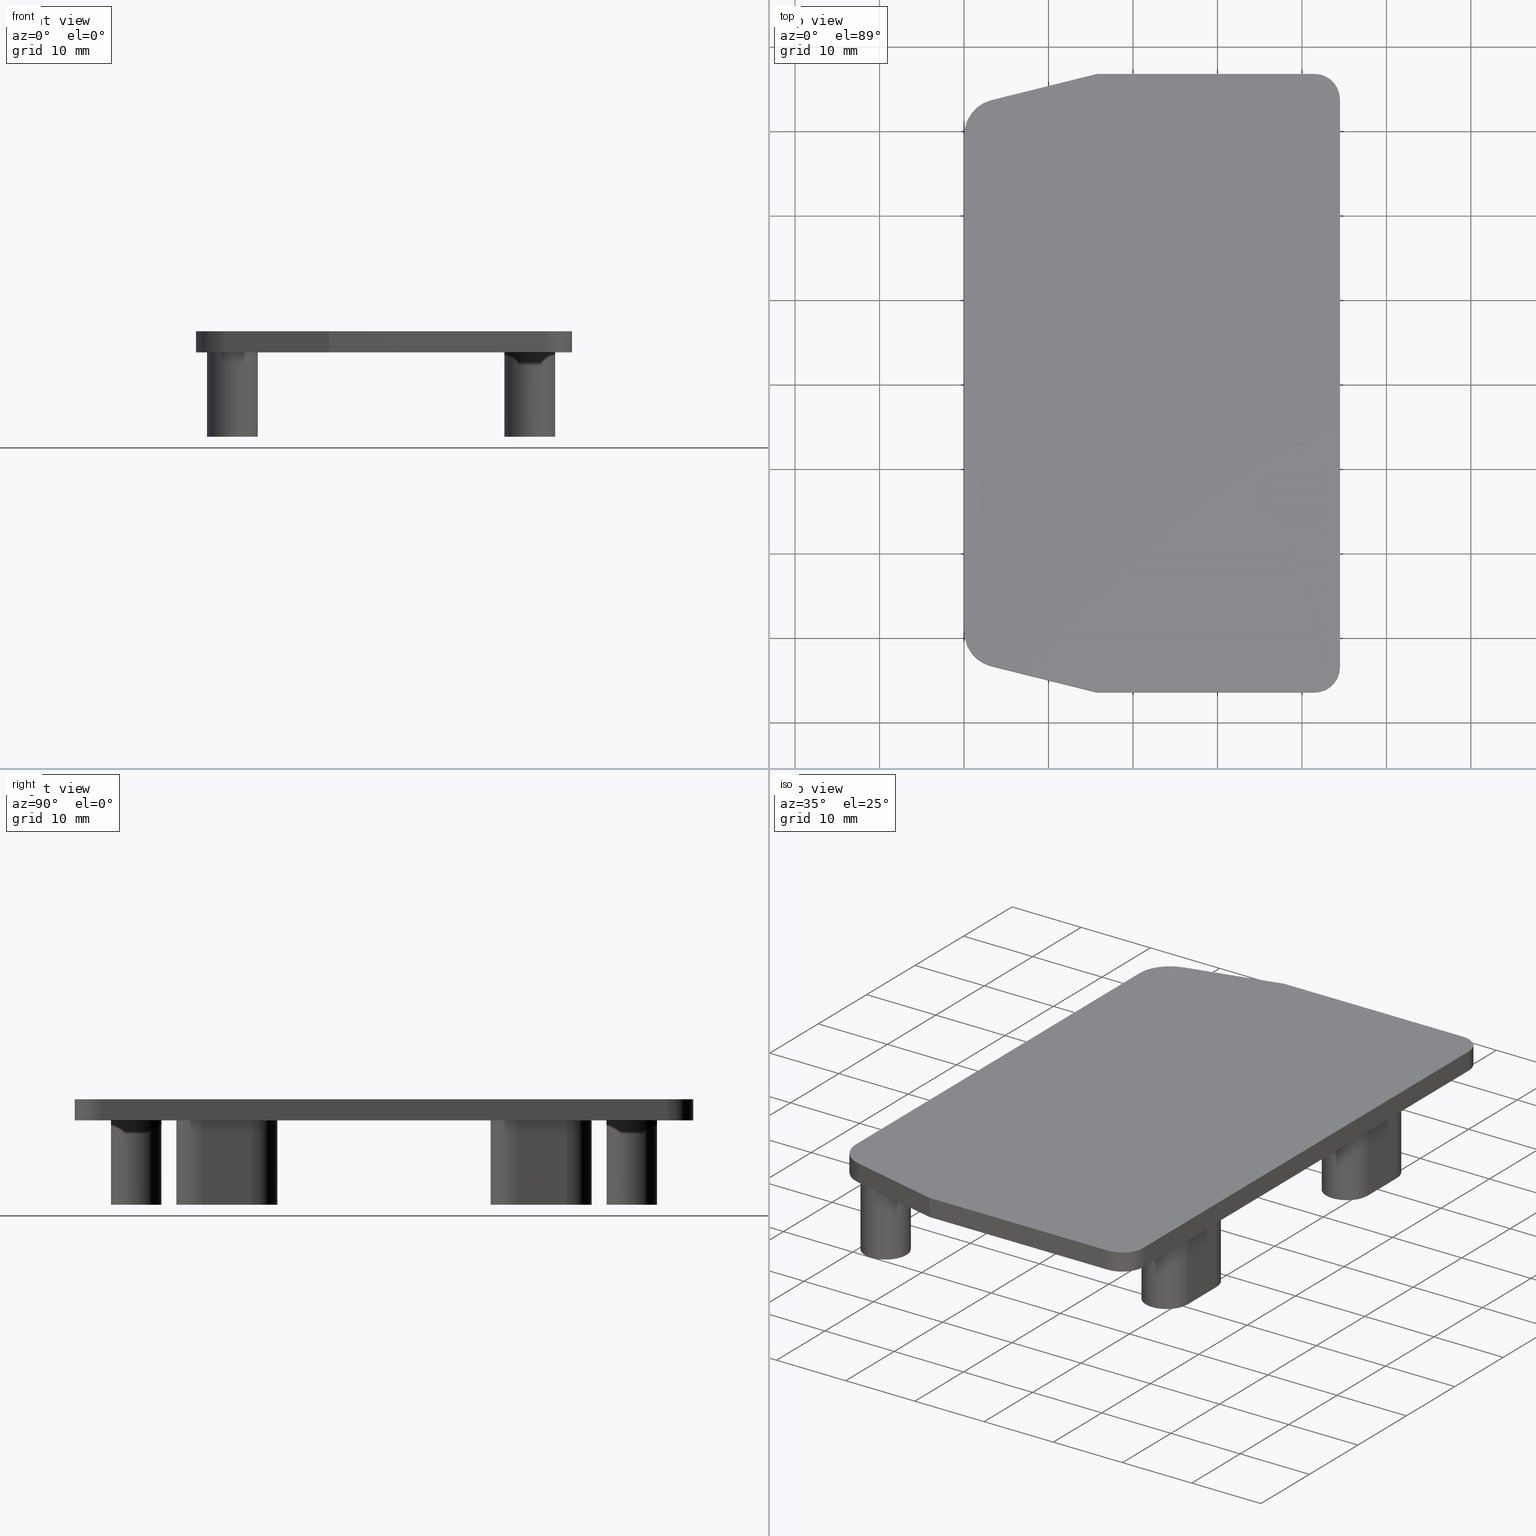
[diagram: canonical four-view strip — front | top / right | iso, engineering-drawing reading convention]
A machine part, canonical four-view strip (front | top / right | iso — engineering-drawing reading convention). The complete STEP part file that produces these views, byte-faithful:
ISO-10303-21;
HEADER;
/* Generated by software containing ST-Developer
 * from STEP Tools, Inc. (www.steptools.com) 
 */

FILE_DESCRIPTION(
/* description */ ('TAPPO BINARIO SCORREVOLE CON COPERTURA'),
/* implementation_level */ '2;1');

FILE_NAME(
/* name */ 
'C:\\Users\\tecnico7\\Desktop\\NUOVI DISEGNI 3D\\DTPXX0000015.stp',
/* time_stamp */ '2022-11-24T13:42:31+01:00',
/* author */ ('tecnico7'),
/* organization */ (''),
/* preprocessor_version */ 'ST-DEVELOPER v18.1',
/* originating_system */ 'Autodesk Inventor 2022',
/* authorisation */ '');

FILE_SCHEMA (('AUTOMOTIVE_DESIGN { 1 0 10303 214 3 1 1 }'));
ENDSEC;

DATA;
#10=MECHANICAL_DESIGN_GEOMETRIC_PRESENTATION_REPRESENTATION('',(#13),#1162);
#11=SHAPE_REPRESENTATION_RELATIONSHIP('SRR','None',#1169,#12);
#12=ADVANCED_BREP_SHAPE_REPRESENTATION('',(#14),#1161);
#13=STYLED_ITEM('',(#1178),#14);
#14=MANIFOLD_SOLID_BREP('None',#669);
#15=FACE_BOUND('',#122,.T.);
#16=FACE_BOUND('',#123,.T.);
#17=FACE_BOUND('',#124,.T.);
#18=FACE_BOUND('',#125,.T.);
#19=FACE_BOUND('',#140,.T.);
#20=FACE_BOUND('',#150,.T.);
#21=FACE_BOUND('',#154,.T.);
#22=FACE_BOUND('',#158,.T.);
#23=CIRCLE('',#694,2.99999999998909);
#24=CIRCLE('',#695,2.99999999998909);
#25=CIRCLE('',#699,4.29673551604732);
#26=CIRCLE('',#700,4.29673551604732);
#27=CIRCLE('',#703,4.29999999996835);
#28=CIRCLE('',#704,4.29999999996835);
#29=CIRCLE('',#708,2.99999999998545);
#30=CIRCLE('',#709,2.99999999998545);
#31=CIRCLE('',#711,2.99999999999272);
#32=CIRCLE('',#712,2.99999999999182);
#33=CIRCLE('',#713,2.99999999999182);
#34=CIRCLE('',#714,2.99999999999272);
#35=CIRCLE('',#715,2.99999999998727);
#36=CIRCLE('',#716,2.99999999998727);
#37=CIRCLE('',#718,1.99999999999272);
#38=CIRCLE('',#720,1.99999999999272);
#39=CIRCLE('',#722,1.99999999999272);
#40=CIRCLE('',#723,1.99999999999182);
#41=CIRCLE('',#725,1.99999999999182);
#42=CIRCLE('',#726,1.99999999999272);
#43=CIRCLE('',#729,2.99999999999182);
#44=CIRCLE('',#732,2.99999999999272);
#45=CIRCLE('',#736,1.99999999999272);
#46=CIRCLE('',#739,1.99999999999182);
#47=CIRCLE('',#742,2.99999999999272);
#48=CIRCLE('',#745,2.99999999999182);
#49=CIRCLE('',#749,1.99999999999182);
#50=CIRCLE('',#752,1.99999999999272);
#51=CIRCLE('',#755,2.99999999998727);
#52=CIRCLE('',#757,1.99999999999272);
#53=CIRCLE('',#760,2.99999999998727);
#54=CIRCLE('',#762,1.99999999999272);
#55=CYLINDRICAL_SURFACE('',#693,2.99999999998909);
#56=CYLINDRICAL_SURFACE('',#698,4.29673551604732);
#57=CYLINDRICAL_SURFACE('',#702,4.29999999996835);
#58=CYLINDRICAL_SURFACE('',#707,2.99999999998545);
#59=CYLINDRICAL_SURFACE('',#728,2.99999999999182);
#60=CYLINDRICAL_SURFACE('',#731,2.99999999999272);
#61=CYLINDRICAL_SURFACE('',#735,1.99999999999272);
#62=CYLINDRICAL_SURFACE('',#738,1.99999999999182);
#63=CYLINDRICAL_SURFACE('',#741,2.99999999999272);
#64=CYLINDRICAL_SURFACE('',#744,2.99999999999182);
#65=CYLINDRICAL_SURFACE('',#748,1.99999999999182);
#66=CYLINDRICAL_SURFACE('',#751,1.99999999999272);
#67=CYLINDRICAL_SURFACE('',#754,2.99999999998727);
#68=CYLINDRICAL_SURFACE('',#756,1.99999999999272);
#69=CYLINDRICAL_SURFACE('',#759,2.99999999998727);
#70=CYLINDRICAL_SURFACE('',#761,1.99999999999272);
#71=FACE_OUTER_BOUND('',#111,.T.);
#72=FACE_OUTER_BOUND('',#112,.T.);
#73=FACE_OUTER_BOUND('',#113,.T.);
#74=FACE_OUTER_BOUND('',#114,.T.);
#75=FACE_OUTER_BOUND('',#115,.T.);
#76=FACE_OUTER_BOUND('',#116,.T.);
#77=FACE_OUTER_BOUND('',#117,.T.);
#78=FACE_OUTER_BOUND('',#118,.T.);
#79=FACE_OUTER_BOUND('',#119,.T.);
#80=FACE_OUTER_BOUND('',#120,.T.);
#81=FACE_OUTER_BOUND('',#121,.T.);
#82=FACE_OUTER_BOUND('',#126,.T.);
#83=FACE_OUTER_BOUND('',#127,.T.);
#84=FACE_OUTER_BOUND('',#128,.T.);
#85=FACE_OUTER_BOUND('',#129,.T.);
#86=FACE_OUTER_BOUND('',#130,.T.);
#87=FACE_OUTER_BOUND('',#131,.T.);
#88=FACE_OUTER_BOUND('',#132,.T.);
#89=FACE_OUTER_BOUND('',#133,.T.);
#90=FACE_OUTER_BOUND('',#134,.T.);
#91=FACE_OUTER_BOUND('',#135,.T.);
#92=FACE_OUTER_BOUND('',#136,.T.);
#93=FACE_OUTER_BOUND('',#137,.T.);
#94=FACE_OUTER_BOUND('',#138,.T.);
#95=FACE_OUTER_BOUND('',#139,.T.);
#96=FACE_OUTER_BOUND('',#141,.T.);
#97=FACE_OUTER_BOUND('',#142,.T.);
#98=FACE_OUTER_BOUND('',#143,.T.);
#99=FACE_OUTER_BOUND('',#144,.T.);
#100=FACE_OUTER_BOUND('',#145,.T.);
#101=FACE_OUTER_BOUND('',#146,.T.);
#102=FACE_OUTER_BOUND('',#147,.T.);
#103=FACE_OUTER_BOUND('',#148,.T.);
#104=FACE_OUTER_BOUND('',#149,.T.);
#105=FACE_OUTER_BOUND('',#151,.T.);
#106=FACE_OUTER_BOUND('',#152,.T.);
#107=FACE_OUTER_BOUND('',#153,.T.);
#108=FACE_OUTER_BOUND('',#155,.T.);
#109=FACE_OUTER_BOUND('',#156,.T.);
#110=FACE_OUTER_BOUND('',#157,.T.);
#111=EDGE_LOOP('',(#425,#426,#427,#428));
#112=EDGE_LOOP('',(#429,#430,#431,#432));
#113=EDGE_LOOP('',(#433,#434,#435,#436));
#114=EDGE_LOOP('',(#437,#438,#439,#440));
#115=EDGE_LOOP('',(#441,#442,#443,#444));
#116=EDGE_LOOP('',(#445,#446,#447,#448));
#117=EDGE_LOOP('',(#449,#450,#451,#452));
#118=EDGE_LOOP('',(#453,#454,#455,#456));
#119=EDGE_LOOP('',(#457,#458,#459,#460));
#120=EDGE_LOOP('',(#461,#462,#463,#464));
#121=EDGE_LOOP('',(#465,#466,#467,#468,#469,#470,#471,#472,#473,#474));
#122=EDGE_LOOP('',(#475,#476,#477,#478));
#123=EDGE_LOOP('',(#479,#480,#481,#482));
#124=EDGE_LOOP('',(#483));
#125=EDGE_LOOP('',(#484));
#126=EDGE_LOOP('',(#485));
#127=EDGE_LOOP('',(#486));
#128=EDGE_LOOP('',(#487,#488,#489,#490));
#129=EDGE_LOOP('',(#491,#492,#493,#494));
#130=EDGE_LOOP('',(#495,#496,#497,#498,#499,#500,#501,#502,#503,#504));
#131=EDGE_LOOP('',(#505,#506,#507,#508));
#132=EDGE_LOOP('',(#509,#510,#511,#512));
#133=EDGE_LOOP('',(#513,#514,#515,#516));
#134=EDGE_LOOP('',(#517,#518,#519,#520));
#135=EDGE_LOOP('',(#521,#522,#523,#524));
#136=EDGE_LOOP('',(#525,#526,#527,#528));
#137=EDGE_LOOP('',(#529,#530,#531,#532));
#138=EDGE_LOOP('',(#533,#534,#535,#536));
#139=EDGE_LOOP('',(#537,#538,#539,#540));
#140=EDGE_LOOP('',(#541,#542,#543,#544));
#141=EDGE_LOOP('',(#545,#546,#547,#548));
#142=EDGE_LOOP('',(#549,#550,#551,#552));
#143=EDGE_LOOP('',(#553,#554,#555,#556));
#144=EDGE_LOOP('',(#557,#558,#559,#560));
#145=EDGE_LOOP('',(#561,#562,#563,#564));
#146=EDGE_LOOP('',(#565,#566,#567,#568));
#147=EDGE_LOOP('',(#569,#570,#571,#572));
#148=EDGE_LOOP('',(#573,#574,#575,#576));
#149=EDGE_LOOP('',(#577,#578,#579,#580));
#150=EDGE_LOOP('',(#581,#582,#583,#584));
#151=EDGE_LOOP('',(#585,#586,#587,#588));
#152=EDGE_LOOP('',(#589,#590,#591,#592));
#153=EDGE_LOOP('',(#593));
#154=EDGE_LOOP('',(#594));
#155=EDGE_LOOP('',(#595,#596,#597,#598));
#156=EDGE_LOOP('',(#599,#600,#601,#602));
#157=EDGE_LOOP('',(#603));
#158=EDGE_LOOP('',(#604));
#159=LINE('',#972,#217);
#160=LINE('',#974,#218);
#161=LINE('',#976,#219);
#162=LINE('',#977,#220);
#163=LINE('',#982,#221);
#164=LINE('',#986,#222);
#165=LINE('',#988,#223);
#166=LINE('',#989,#224);
#167=LINE('',#992,#225);
#168=LINE('',#994,#226);
#169=LINE('',#995,#227);
#170=LINE('',#1000,#228);
#171=LINE('',#1004,#229);
#172=LINE('',#1006,#230);
#173=LINE('',#1007,#231);
#174=LINE('',#1012,#232);
#175=LINE('',#1016,#233);
#176=LINE('',#1018,#234);
#177=LINE('',#1019,#235);
#178=LINE('',#1022,#236);
#179=LINE('',#1024,#237);
#180=LINE('',#1025,#238);
#181=LINE('',#1034,#239);
#182=LINE('',#1037,#240);
#183=LINE('',#1042,#241);
#184=LINE('',#1045,#242);
#185=LINE('',#1059,#243);
#186=LINE('',#1063,#244);
#187=LINE('',#1068,#245);
#188=LINE('',#1072,#246);
#189=LINE('',#1077,#247);
#190=LINE('',#1079,#248);
#191=LINE('',#1083,#249);
#192=LINE('',#1084,#250);
#193=LINE('',#1087,#251);
#194=LINE('',#1090,#252);
#195=LINE('',#1093,#253);
#196=LINE('',#1095,#254);
#197=LINE('',#1096,#255);
#198=LINE('',#1099,#256);
#199=LINE('',#1103,#257);
#200=LINE('',#1104,#258);
#201=LINE('',#1110,#259);
#202=LINE('',#1112,#260);
#203=LINE('',#1116,#261);
#204=LINE('',#1117,#262);
#205=LINE('',#1120,#263);
#206=LINE('',#1123,#264);
#207=LINE('',#1126,#265);
#208=LINE('',#1128,#266);
#209=LINE('',#1129,#267);
#210=LINE('',#1132,#268);
#211=LINE('',#1136,#269);
#212=LINE('',#1137,#270);
#213=LINE('',#1144,#271);
#214=LINE('',#1148,#272);
#215=LINE('',#1153,#273);
#216=LINE('',#1157,#274);
#217=VECTOR('',#768,67.2119999997303);
#218=VECTOR('',#769,2.5);
#219=VECTOR('',#770,67.2119999997303);
#220=VECTOR('',#771,2.5);
#221=VECTOR('',#776,2.5);
#222=VECTOR('',#781,25.7499999998945);
#223=VECTOR('',#782,2.5);
#224=VECTOR('',#783,25.7499999998945);
#225=VECTOR('',#786,12.8672123176387);
#226=VECTOR('',#787,2.5);
#227=VECTOR('',#788,12.8672123176387);
#228=VECTOR('',#793,2.5);
#229=VECTOR('',#798,58.6699999997654);
#230=VECTOR('',#799,2.5);
#231=VECTOR('',#800,58.6699999997654);
#232=VECTOR('',#805,2.5);
#233=VECTOR('',#810,12.8346385930391);
#234=VECTOR('',#811,2.5);
#235=VECTOR('',#812,12.8346385930391);
#236=VECTOR('',#815,25.7828573274437);
#237=VECTOR('',#816,2.5);
#238=VECTOR('',#817,25.7828573274437);
#239=VECTOR('',#828,5.99999999997453);
#240=VECTOR('',#831,5.99999999997453);
#241=VECTOR('',#834,5.99999999997453);
#242=VECTOR('',#837,5.99999999997453);
#243=VECTOR('',#852,5.99999999997453);
#244=VECTOR('',#855,5.99999999997453);
#245=VECTOR('',#860,5.99999999997453);
#246=VECTOR('',#863,5.99999999997453);
#247=VECTOR('',#870,10.);
#248=VECTOR('',#871,10.);
#249=VECTOR('',#876,10.);
#250=VECTOR('',#877,5.99999999997453);
#251=VECTOR('',#880,10.);
#252=VECTOR('',#885,5.99999999997453);
#253=VECTOR('',#888,10.);
#254=VECTOR('',#889,10.);
#255=VECTOR('',#890,5.99999999997453);
#256=VECTOR('',#893,10.);
#257=VECTOR('',#898,10.);
#258=VECTOR('',#899,5.99999999997453);
#259=VECTOR('',#908,10.);
#260=VECTOR('',#909,10.);
#261=VECTOR('',#914,10.);
#262=VECTOR('',#915,5.99999999997453);
#263=VECTOR('',#918,10.);
#264=VECTOR('',#923,5.99999999997453);
#265=VECTOR('',#926,10.);
#266=VECTOR('',#927,10.);
#267=VECTOR('',#928,5.99999999997453);
#268=VECTOR('',#931,10.);
#269=VECTOR('',#936,10.);
#270=VECTOR('',#937,5.99999999997453);
#271=VECTOR('',#948,2.99999999998727);
#272=VECTOR('',#953,1.99999999999272);
#273=VECTOR('',#960,2.99999999998727);
#274=VECTOR('',#965,1.99999999999272);
#275=VERTEX_POINT('',#970);
#276=VERTEX_POINT('',#971);
#277=VERTEX_POINT('',#973);
#278=VERTEX_POINT('',#975);
#279=VERTEX_POINT('',#979);
#280=VERTEX_POINT('',#981);
#281=VERTEX_POINT('',#985);
#282=VERTEX_POINT('',#987);
#283=VERTEX_POINT('',#991);
#284=VERTEX_POINT('',#993);
#285=VERTEX_POINT('',#997);
#286=VERTEX_POINT('',#999);
#287=VERTEX_POINT('',#1003);
#288=VERTEX_POINT('',#1005);
#289=VERTEX_POINT('',#1009);
#290=VERTEX_POINT('',#1011);
#291=VERTEX_POINT('',#1015);
#292=VERTEX_POINT('',#1017);
#293=VERTEX_POINT('',#1021);
#294=VERTEX_POINT('',#1023);
#295=VERTEX_POINT('',#1030);
#296=VERTEX_POINT('',#1031);
#297=VERTEX_POINT('',#1033);
#298=VERTEX_POINT('',#1035);
#299=VERTEX_POINT('',#1038);
#300=VERTEX_POINT('',#1039);
#301=VERTEX_POINT('',#1041);
#302=VERTEX_POINT('',#1043);
#303=VERTEX_POINT('',#1046);
#304=VERTEX_POINT('',#1048);
#305=VERTEX_POINT('',#1051);
#306=VERTEX_POINT('',#1054);
#307=VERTEX_POINT('',#1057);
#308=VERTEX_POINT('',#1058);
#309=VERTEX_POINT('',#1060);
#310=VERTEX_POINT('',#1062);
#311=VERTEX_POINT('',#1066);
#312=VERTEX_POINT('',#1067);
#313=VERTEX_POINT('',#1069);
#314=VERTEX_POINT('',#1071);
#315=VERTEX_POINT('',#1076);
#316=VERTEX_POINT('',#1078);
#317=VERTEX_POINT('',#1082);
#318=VERTEX_POINT('',#1086);
#319=VERTEX_POINT('',#1092);
#320=VERTEX_POINT('',#1094);
#321=VERTEX_POINT('',#1098);
#322=VERTEX_POINT('',#1102);
#323=VERTEX_POINT('',#1109);
#324=VERTEX_POINT('',#1111);
#325=VERTEX_POINT('',#1115);
#326=VERTEX_POINT('',#1119);
#327=VERTEX_POINT('',#1125);
#328=VERTEX_POINT('',#1127);
#329=VERTEX_POINT('',#1131);
#330=VERTEX_POINT('',#1135);
#331=VERTEX_POINT('',#1142);
#332=VERTEX_POINT('',#1146);
#333=VERTEX_POINT('',#1151);
#334=VERTEX_POINT('',#1155);
#335=EDGE_CURVE('',#275,#276,#159,.T.);
#336=EDGE_CURVE('',#276,#277,#160,.T.);
#337=EDGE_CURVE('',#278,#277,#161,.T.);
#338=EDGE_CURVE('',#275,#278,#162,.T.);
#339=EDGE_CURVE('',#276,#279,#23,.T.);
#340=EDGE_CURVE('',#279,#280,#163,.T.);
#341=EDGE_CURVE('',#277,#280,#24,.T.);
#342=EDGE_CURVE('',#279,#281,#164,.T.);
#343=EDGE_CURVE('',#281,#282,#165,.T.);
#344=EDGE_CURVE('',#280,#282,#166,.T.);
#345=EDGE_CURVE('',#281,#283,#167,.T.);
#346=EDGE_CURVE('',#283,#284,#168,.T.);
#347=EDGE_CURVE('',#282,#284,#169,.T.);
#348=EDGE_CURVE('',#283,#285,#25,.T.);
#349=EDGE_CURVE('',#285,#286,#170,.T.);
#350=EDGE_CURVE('',#284,#286,#26,.T.);
#351=EDGE_CURVE('',#285,#287,#171,.T.);
#352=EDGE_CURVE('',#287,#288,#172,.T.);
#353=EDGE_CURVE('',#286,#288,#173,.T.);
#354=EDGE_CURVE('',#287,#289,#27,.T.);
#355=EDGE_CURVE('',#289,#290,#174,.T.);
#356=EDGE_CURVE('',#288,#290,#28,.T.);
#357=EDGE_CURVE('',#289,#291,#175,.T.);
#358=EDGE_CURVE('',#291,#292,#176,.T.);
#359=EDGE_CURVE('',#290,#292,#177,.T.);
#360=EDGE_CURVE('',#291,#293,#178,.T.);
#361=EDGE_CURVE('',#293,#294,#179,.T.);
#362=EDGE_CURVE('',#292,#294,#180,.T.);
#363=EDGE_CURVE('',#293,#275,#29,.T.);
#364=EDGE_CURVE('',#294,#278,#30,.T.);
#365=EDGE_CURVE('',#295,#296,#31,.T.);
#366=EDGE_CURVE('',#297,#295,#181,.T.);
#367=EDGE_CURVE('',#298,#297,#32,.T.);
#368=EDGE_CURVE('',#296,#298,#182,.T.);
#369=EDGE_CURVE('',#299,#300,#33,.T.);
#370=EDGE_CURVE('',#301,#299,#183,.T.);
#371=EDGE_CURVE('',#302,#301,#34,.T.);
#372=EDGE_CURVE('',#300,#302,#184,.T.);
#373=EDGE_CURVE('',#303,#303,#35,.T.);
#374=EDGE_CURVE('',#304,#304,#36,.T.);
#375=EDGE_CURVE('',#305,#305,#37,.T.);
#376=EDGE_CURVE('',#306,#306,#38,.T.);
#377=EDGE_CURVE('',#307,#308,#185,.T.);
#378=EDGE_CURVE('',#309,#307,#39,.T.);
#379=EDGE_CURVE('',#310,#309,#186,.T.);
#380=EDGE_CURVE('',#308,#310,#40,.T.);
#381=EDGE_CURVE('',#311,#312,#187,.T.);
#382=EDGE_CURVE('',#313,#311,#41,.T.);
#383=EDGE_CURVE('',#314,#313,#188,.T.);
#384=EDGE_CURVE('',#312,#314,#42,.T.);
#385=EDGE_CURVE('',#298,#315,#189,.T.);
#386=EDGE_CURVE('',#297,#316,#190,.T.);
#387=EDGE_CURVE('',#315,#316,#43,.T.);
#388=EDGE_CURVE('',#295,#317,#191,.T.);
#389=EDGE_CURVE('',#316,#317,#192,.T.);
#390=EDGE_CURVE('',#296,#318,#193,.T.);
#391=EDGE_CURVE('',#317,#318,#44,.T.);
#392=EDGE_CURVE('',#318,#315,#194,.T.);
#393=EDGE_CURVE('',#311,#319,#195,.T.);
#394=EDGE_CURVE('',#312,#320,#196,.T.);
#395=EDGE_CURVE('',#319,#320,#197,.T.);
#396=EDGE_CURVE('',#314,#321,#198,.T.);
#397=EDGE_CURVE('',#320,#321,#45,.T.);
#398=EDGE_CURVE('',#313,#322,#199,.T.);
#399=EDGE_CURVE('',#321,#322,#200,.T.);
#400=EDGE_CURVE('',#322,#319,#46,.T.);
#401=EDGE_CURVE('',#302,#323,#201,.T.);
#402=EDGE_CURVE('',#301,#324,#202,.T.);
#403=EDGE_CURVE('',#323,#324,#47,.T.);
#404=EDGE_CURVE('',#299,#325,#203,.T.);
#405=EDGE_CURVE('',#324,#325,#204,.T.);
#406=EDGE_CURVE('',#300,#326,#205,.T.);
#407=EDGE_CURVE('',#325,#326,#48,.T.);
#408=EDGE_CURVE('',#326,#323,#206,.T.);
#409=EDGE_CURVE('',#307,#327,#207,.T.);
#410=EDGE_CURVE('',#308,#328,#208,.T.);
#411=EDGE_CURVE('',#327,#328,#209,.T.);
#412=EDGE_CURVE('',#310,#329,#210,.T.);
#413=EDGE_CURVE('',#328,#329,#49,.T.);
#414=EDGE_CURVE('',#309,#330,#211,.T.);
#415=EDGE_CURVE('',#329,#330,#212,.T.);
#416=EDGE_CURVE('',#330,#327,#50,.T.);
#417=EDGE_CURVE('',#331,#331,#51,.T.);
#418=EDGE_CURVE('',#331,#303,#213,.T.);
#419=EDGE_CURVE('',#332,#332,#52,.T.);
#420=EDGE_CURVE('',#332,#306,#214,.T.);
#421=EDGE_CURVE('',#333,#333,#53,.T.);
#422=EDGE_CURVE('',#333,#304,#215,.T.);
#423=EDGE_CURVE('',#334,#334,#54,.T.);
#424=EDGE_CURVE('',#334,#305,#216,.T.);
#425=ORIENTED_EDGE('',*,*,#335,.T.);
#426=ORIENTED_EDGE('',*,*,#336,.T.);
#427=ORIENTED_EDGE('',*,*,#337,.F.);
#428=ORIENTED_EDGE('',*,*,#338,.F.);
#429=ORIENTED_EDGE('',*,*,#339,.T.);
#430=ORIENTED_EDGE('',*,*,#340,.T.);
#431=ORIENTED_EDGE('',*,*,#341,.F.);
#432=ORIENTED_EDGE('',*,*,#336,.F.);
#433=ORIENTED_EDGE('',*,*,#342,.T.);
#434=ORIENTED_EDGE('',*,*,#343,.T.);
#435=ORIENTED_EDGE('',*,*,#344,.F.);
#436=ORIENTED_EDGE('',*,*,#340,.F.);
#437=ORIENTED_EDGE('',*,*,#345,.T.);
#438=ORIENTED_EDGE('',*,*,#346,.T.);
#439=ORIENTED_EDGE('',*,*,#347,.F.);
#440=ORIENTED_EDGE('',*,*,#343,.F.);
#441=ORIENTED_EDGE('',*,*,#348,.T.);
#442=ORIENTED_EDGE('',*,*,#349,.T.);
#443=ORIENTED_EDGE('',*,*,#350,.F.);
#444=ORIENTED_EDGE('',*,*,#346,.F.);
#445=ORIENTED_EDGE('',*,*,#351,.T.);
#446=ORIENTED_EDGE('',*,*,#352,.T.);
#447=ORIENTED_EDGE('',*,*,#353,.F.);
#448=ORIENTED_EDGE('',*,*,#349,.F.);
#449=ORIENTED_EDGE('',*,*,#354,.T.);
#450=ORIENTED_EDGE('',*,*,#355,.T.);
#451=ORIENTED_EDGE('',*,*,#356,.F.);
#452=ORIENTED_EDGE('',*,*,#352,.F.);
#453=ORIENTED_EDGE('',*,*,#357,.T.);
#454=ORIENTED_EDGE('',*,*,#358,.T.);
#455=ORIENTED_EDGE('',*,*,#359,.F.);
#456=ORIENTED_EDGE('',*,*,#355,.F.);
#457=ORIENTED_EDGE('',*,*,#360,.T.);
#458=ORIENTED_EDGE('',*,*,#361,.T.);
#459=ORIENTED_EDGE('',*,*,#362,.F.);
#460=ORIENTED_EDGE('',*,*,#358,.F.);
#461=ORIENTED_EDGE('',*,*,#363,.T.);
#462=ORIENTED_EDGE('',*,*,#338,.T.);
#463=ORIENTED_EDGE('',*,*,#364,.F.);
#464=ORIENTED_EDGE('',*,*,#361,.F.);
#465=ORIENTED_EDGE('',*,*,#363,.F.);
#466=ORIENTED_EDGE('',*,*,#360,.F.);
#467=ORIENTED_EDGE('',*,*,#357,.F.);
#468=ORIENTED_EDGE('',*,*,#354,.F.);
#469=ORIENTED_EDGE('',*,*,#351,.F.);
#470=ORIENTED_EDGE('',*,*,#348,.F.);
#471=ORIENTED_EDGE('',*,*,#345,.F.);
#472=ORIENTED_EDGE('',*,*,#342,.F.);
#473=ORIENTED_EDGE('',*,*,#339,.F.);
#474=ORIENTED_EDGE('',*,*,#335,.F.);
#475=ORIENTED_EDGE('',*,*,#365,.F.);
#476=ORIENTED_EDGE('',*,*,#366,.F.);
#477=ORIENTED_EDGE('',*,*,#367,.F.);
#478=ORIENTED_EDGE('',*,*,#368,.F.);
#479=ORIENTED_EDGE('',*,*,#369,.F.);
#480=ORIENTED_EDGE('',*,*,#370,.F.);
#481=ORIENTED_EDGE('',*,*,#371,.F.);
#482=ORIENTED_EDGE('',*,*,#372,.F.);
#483=ORIENTED_EDGE('',*,*,#373,.F.);
#484=ORIENTED_EDGE('',*,*,#374,.F.);
#485=ORIENTED_EDGE('',*,*,#375,.F.);
#486=ORIENTED_EDGE('',*,*,#376,.F.);
#487=ORIENTED_EDGE('',*,*,#377,.F.);
#488=ORIENTED_EDGE('',*,*,#378,.F.);
#489=ORIENTED_EDGE('',*,*,#379,.F.);
#490=ORIENTED_EDGE('',*,*,#380,.F.);
#491=ORIENTED_EDGE('',*,*,#381,.F.);
#492=ORIENTED_EDGE('',*,*,#382,.F.);
#493=ORIENTED_EDGE('',*,*,#383,.F.);
#494=ORIENTED_EDGE('',*,*,#384,.F.);
#495=ORIENTED_EDGE('',*,*,#337,.T.);
#496=ORIENTED_EDGE('',*,*,#341,.T.);
#497=ORIENTED_EDGE('',*,*,#344,.T.);
#498=ORIENTED_EDGE('',*,*,#347,.T.);
#499=ORIENTED_EDGE('',*,*,#350,.T.);
#500=ORIENTED_EDGE('',*,*,#353,.T.);
#501=ORIENTED_EDGE('',*,*,#356,.T.);
#502=ORIENTED_EDGE('',*,*,#359,.T.);
#503=ORIENTED_EDGE('',*,*,#362,.T.);
#504=ORIENTED_EDGE('',*,*,#364,.T.);
#505=ORIENTED_EDGE('',*,*,#385,.F.);
#506=ORIENTED_EDGE('',*,*,#367,.T.);
#507=ORIENTED_EDGE('',*,*,#386,.T.);
#508=ORIENTED_EDGE('',*,*,#387,.F.);
#509=ORIENTED_EDGE('',*,*,#386,.F.);
#510=ORIENTED_EDGE('',*,*,#366,.T.);
#511=ORIENTED_EDGE('',*,*,#388,.T.);
#512=ORIENTED_EDGE('',*,*,#389,.F.);
#513=ORIENTED_EDGE('',*,*,#388,.F.);
#514=ORIENTED_EDGE('',*,*,#365,.T.);
#515=ORIENTED_EDGE('',*,*,#390,.T.);
#516=ORIENTED_EDGE('',*,*,#391,.F.);
#517=ORIENTED_EDGE('',*,*,#392,.F.);
#518=ORIENTED_EDGE('',*,*,#390,.F.);
#519=ORIENTED_EDGE('',*,*,#368,.T.);
#520=ORIENTED_EDGE('',*,*,#385,.T.);
#521=ORIENTED_EDGE('',*,*,#393,.F.);
#522=ORIENTED_EDGE('',*,*,#381,.T.);
#523=ORIENTED_EDGE('',*,*,#394,.T.);
#524=ORIENTED_EDGE('',*,*,#395,.F.);
#525=ORIENTED_EDGE('',*,*,#394,.F.);
#526=ORIENTED_EDGE('',*,*,#384,.T.);
#527=ORIENTED_EDGE('',*,*,#396,.T.);
#528=ORIENTED_EDGE('',*,*,#397,.F.);
#529=ORIENTED_EDGE('',*,*,#396,.F.);
#530=ORIENTED_EDGE('',*,*,#383,.T.);
#531=ORIENTED_EDGE('',*,*,#398,.T.);
#532=ORIENTED_EDGE('',*,*,#399,.F.);
#533=ORIENTED_EDGE('',*,*,#400,.F.);
#534=ORIENTED_EDGE('',*,*,#398,.F.);
#535=ORIENTED_EDGE('',*,*,#382,.T.);
#536=ORIENTED_EDGE('',*,*,#393,.T.);
#537=ORIENTED_EDGE('',*,*,#387,.T.);
#538=ORIENTED_EDGE('',*,*,#389,.T.);
#539=ORIENTED_EDGE('',*,*,#391,.T.);
#540=ORIENTED_EDGE('',*,*,#392,.T.);
#541=ORIENTED_EDGE('',*,*,#395,.T.);
#542=ORIENTED_EDGE('',*,*,#397,.T.);
#543=ORIENTED_EDGE('',*,*,#399,.T.);
#544=ORIENTED_EDGE('',*,*,#400,.T.);
#545=ORIENTED_EDGE('',*,*,#401,.F.);
#546=ORIENTED_EDGE('',*,*,#371,.T.);
#547=ORIENTED_EDGE('',*,*,#402,.T.);
#548=ORIENTED_EDGE('',*,*,#403,.F.);
#549=ORIENTED_EDGE('',*,*,#402,.F.);
#550=ORIENTED_EDGE('',*,*,#370,.T.);
#551=ORIENTED_EDGE('',*,*,#404,.T.);
#552=ORIENTED_EDGE('',*,*,#405,.F.);
#553=ORIENTED_EDGE('',*,*,#404,.F.);
#554=ORIENTED_EDGE('',*,*,#369,.T.);
#555=ORIENTED_EDGE('',*,*,#406,.T.);
#556=ORIENTED_EDGE('',*,*,#407,.F.);
#557=ORIENTED_EDGE('',*,*,#408,.F.);
#558=ORIENTED_EDGE('',*,*,#406,.F.);
#559=ORIENTED_EDGE('',*,*,#372,.T.);
#560=ORIENTED_EDGE('',*,*,#401,.T.);
#561=ORIENTED_EDGE('',*,*,#409,.F.);
#562=ORIENTED_EDGE('',*,*,#377,.T.);
#563=ORIENTED_EDGE('',*,*,#410,.T.);
#564=ORIENTED_EDGE('',*,*,#411,.F.);
#565=ORIENTED_EDGE('',*,*,#410,.F.);
#566=ORIENTED_EDGE('',*,*,#380,.T.);
#567=ORIENTED_EDGE('',*,*,#412,.T.);
#568=ORIENTED_EDGE('',*,*,#413,.F.);
#569=ORIENTED_EDGE('',*,*,#412,.F.);
#570=ORIENTED_EDGE('',*,*,#379,.T.);
#571=ORIENTED_EDGE('',*,*,#414,.T.);
#572=ORIENTED_EDGE('',*,*,#415,.F.);
#573=ORIENTED_EDGE('',*,*,#416,.F.);
#574=ORIENTED_EDGE('',*,*,#414,.F.);
#575=ORIENTED_EDGE('',*,*,#378,.T.);
#576=ORIENTED_EDGE('',*,*,#409,.T.);
#577=ORIENTED_EDGE('',*,*,#403,.T.);
#578=ORIENTED_EDGE('',*,*,#405,.T.);
#579=ORIENTED_EDGE('',*,*,#407,.T.);
#580=ORIENTED_EDGE('',*,*,#408,.T.);
#581=ORIENTED_EDGE('',*,*,#411,.T.);
#582=ORIENTED_EDGE('',*,*,#413,.T.);
#583=ORIENTED_EDGE('',*,*,#415,.T.);
#584=ORIENTED_EDGE('',*,*,#416,.T.);
#585=ORIENTED_EDGE('',*,*,#417,.F.);
#586=ORIENTED_EDGE('',*,*,#418,.T.);
#587=ORIENTED_EDGE('',*,*,#373,.T.);
#588=ORIENTED_EDGE('',*,*,#418,.F.);
#589=ORIENTED_EDGE('',*,*,#419,.F.);
#590=ORIENTED_EDGE('',*,*,#420,.T.);
#591=ORIENTED_EDGE('',*,*,#376,.T.);
#592=ORIENTED_EDGE('',*,*,#420,.F.);
#593=ORIENTED_EDGE('',*,*,#417,.T.);
#594=ORIENTED_EDGE('',*,*,#419,.T.);
#595=ORIENTED_EDGE('',*,*,#421,.F.);
#596=ORIENTED_EDGE('',*,*,#422,.T.);
#597=ORIENTED_EDGE('',*,*,#374,.T.);
#598=ORIENTED_EDGE('',*,*,#422,.F.);
#599=ORIENTED_EDGE('',*,*,#423,.F.);
#600=ORIENTED_EDGE('',*,*,#424,.T.);
#601=ORIENTED_EDGE('',*,*,#375,.T.);
#602=ORIENTED_EDGE('',*,*,#424,.F.);
#603=ORIENTED_EDGE('',*,*,#421,.T.);
#604=ORIENTED_EDGE('',*,*,#423,.T.);
#605=PLANE('',#692);
#606=PLANE('',#696);
#607=PLANE('',#697);
#608=PLANE('',#701);
#609=PLANE('',#705);
#610=PLANE('',#706);
#611=PLANE('',#710);
#612=PLANE('',#717);
#613=PLANE('',#719);
#614=PLANE('',#721);
#615=PLANE('',#724);
#616=PLANE('',#727);
#617=PLANE('',#730);
#618=PLANE('',#733);
#619=PLANE('',#734);
#620=PLANE('',#737);
#621=PLANE('',#740);
#622=PLANE('',#743);
#623=PLANE('',#746);
#624=PLANE('',#747);
#625=PLANE('',#750);
#626=PLANE('',#753);
#627=PLANE('',#758);
#628=PLANE('',#763);
#629=ADVANCED_FACE('',(#71),#605,.T.);
#630=ADVANCED_FACE('',(#72),#55,.T.);
#631=ADVANCED_FACE('',(#73),#606,.T.);
#632=ADVANCED_FACE('',(#74),#607,.T.);
#633=ADVANCED_FACE('',(#75),#56,.T.);
#634=ADVANCED_FACE('',(#76),#608,.T.);
#635=ADVANCED_FACE('',(#77),#57,.T.);
#636=ADVANCED_FACE('',(#78),#609,.T.);
#637=ADVANCED_FACE('',(#79),#610,.T.);
#638=ADVANCED_FACE('',(#80),#58,.T.);
#639=ADVANCED_FACE('',(#81,#15,#16,#17,#18),#611,.F.);
#640=ADVANCED_FACE('',(#82),#612,.F.);
#641=ADVANCED_FACE('',(#83),#613,.F.);
#642=ADVANCED_FACE('',(#84),#614,.F.);
#643=ADVANCED_FACE('',(#85),#615,.F.);
#644=ADVANCED_FACE('',(#86),#616,.T.);
#645=ADVANCED_FACE('',(#87),#59,.T.);
#646=ADVANCED_FACE('',(#88),#617,.T.);
#647=ADVANCED_FACE('',(#89),#60,.T.);
#648=ADVANCED_FACE('',(#90),#618,.T.);
#649=ADVANCED_FACE('',(#91),#619,.T.);
#650=ADVANCED_FACE('',(#92),#61,.F.);
#651=ADVANCED_FACE('',(#93),#620,.T.);
#652=ADVANCED_FACE('',(#94),#62,.F.);
#653=ADVANCED_FACE('',(#95,#19),#621,.T.);
#654=ADVANCED_FACE('',(#96),#63,.T.);
#655=ADVANCED_FACE('',(#97),#622,.T.);
#656=ADVANCED_FACE('',(#98),#64,.T.);
#657=ADVANCED_FACE('',(#99),#623,.T.);
#658=ADVANCED_FACE('',(#100),#624,.T.);
#659=ADVANCED_FACE('',(#101),#65,.F.);
#660=ADVANCED_FACE('',(#102),#625,.T.);
#661=ADVANCED_FACE('',(#103),#66,.F.);
#662=ADVANCED_FACE('',(#104,#20),#626,.T.);
#663=ADVANCED_FACE('',(#105),#67,.T.);
#664=ADVANCED_FACE('',(#106),#68,.F.);
#665=ADVANCED_FACE('',(#107,#21),#627,.T.);
#666=ADVANCED_FACE('',(#108),#69,.T.);
#667=ADVANCED_FACE('',(#109),#70,.F.);
#668=ADVANCED_FACE('',(#110,#22),#628,.T.);
#669=CLOSED_SHELL('',(#629,#630,#631,#632,#633,#634,#635,#636,#637,#638,
#639,#640,#641,#642,#643,#644,#645,#646,#647,#648,#649,#650,#651,#652,#653,
#654,#655,#656,#657,#658,#659,#660,#661,#662,#663,#664,#665,#666,#667,#668));
#670=DERIVED_UNIT_ELEMENT(#673,1.);
#671=DERIVED_UNIT_ELEMENT(#1164,-3.);
#672=DIMENSIONAL_EXPONENTS(1.,0.,0.,0.,0.,0.,0.);
#673=(
CONVERSION_BASED_UNIT('gram',#675)
MASS_UNIT()
NAMED_UNIT(#672)
);
#674=(
MASS_UNIT()
NAMED_UNIT(*)
SI_UNIT(.KILO.,.GRAM.)
);
#675=MASS_MEASURE_WITH_UNIT(MASS_MEASURE(0.001),#674);
#676=DERIVED_UNIT((#670,#671));
#677=MEASURE_REPRESENTATION_ITEM('density measure',
POSITIVE_RATIO_MEASURE(1.13),#676);
#678=PROPERTY_DEFINITION_REPRESENTATION(#683,#680);
#679=PROPERTY_DEFINITION_REPRESENTATION(#684,#681);
#680=REPRESENTATION('material name',(#682),#1161);
#681=REPRESENTATION('density',(#677),#1161);
#682=DESCRIPTIVE_REPRESENTATION_ITEM('NYLON','NYLON');
#683=PROPERTY_DEFINITION('material property','material name',#1171);
#684=PROPERTY_DEFINITION('material property','density of part',#1171);
#685=DATE_TIME_ROLE('creation_date');
#686=APPLIED_DATE_AND_TIME_ASSIGNMENT(#687,#685,(#1171));
#687=DATE_AND_TIME(#688,#689);
#688=CALENDAR_DATE(2013,16,12);
#689=LOCAL_TIME(0,0,0.,#690);
#690=COORDINATED_UNIVERSAL_TIME_OFFSET(0,0,.BEHIND.);
#691=AXIS2_PLACEMENT_3D('placement',#968,#764,#765);
#692=AXIS2_PLACEMENT_3D('',#969,#766,#767);
#693=AXIS2_PLACEMENT_3D('',#978,#772,#773);
#694=AXIS2_PLACEMENT_3D('',#980,#774,#775);
#695=AXIS2_PLACEMENT_3D('',#983,#777,#778);
#696=AXIS2_PLACEMENT_3D('',#984,#779,#780);
#697=AXIS2_PLACEMENT_3D('',#990,#784,#785);
#698=AXIS2_PLACEMENT_3D('',#996,#789,#790);
#699=AXIS2_PLACEMENT_3D('',#998,#791,#792);
#700=AXIS2_PLACEMENT_3D('',#1001,#794,#795);
#701=AXIS2_PLACEMENT_3D('',#1002,#796,#797);
#702=AXIS2_PLACEMENT_3D('',#1008,#801,#802);
#703=AXIS2_PLACEMENT_3D('',#1010,#803,#804);
#704=AXIS2_PLACEMENT_3D('',#1013,#806,#807);
#705=AXIS2_PLACEMENT_3D('',#1014,#808,#809);
#706=AXIS2_PLACEMENT_3D('',#1020,#813,#814);
#707=AXIS2_PLACEMENT_3D('',#1026,#818,#819);
#708=AXIS2_PLACEMENT_3D('',#1027,#820,#821);
#709=AXIS2_PLACEMENT_3D('',#1028,#822,#823);
#710=AXIS2_PLACEMENT_3D('',#1029,#824,#825);
#711=AXIS2_PLACEMENT_3D('',#1032,#826,#827);
#712=AXIS2_PLACEMENT_3D('',#1036,#829,#830);
#713=AXIS2_PLACEMENT_3D('',#1040,#832,#833);
#714=AXIS2_PLACEMENT_3D('',#1044,#835,#836);
#715=AXIS2_PLACEMENT_3D('',#1047,#838,#839);
#716=AXIS2_PLACEMENT_3D('',#1049,#840,#841);
#717=AXIS2_PLACEMENT_3D('',#1050,#842,#843);
#718=AXIS2_PLACEMENT_3D('',#1052,#844,#845);
#719=AXIS2_PLACEMENT_3D('',#1053,#846,#847);
#720=AXIS2_PLACEMENT_3D('',#1055,#848,#849);
#721=AXIS2_PLACEMENT_3D('',#1056,#850,#851);
#722=AXIS2_PLACEMENT_3D('',#1061,#853,#854);
#723=AXIS2_PLACEMENT_3D('',#1064,#856,#857);
#724=AXIS2_PLACEMENT_3D('',#1065,#858,#859);
#725=AXIS2_PLACEMENT_3D('',#1070,#861,#862);
#726=AXIS2_PLACEMENT_3D('',#1073,#864,#865);
#727=AXIS2_PLACEMENT_3D('',#1074,#866,#867);
#728=AXIS2_PLACEMENT_3D('',#1075,#868,#869);
#729=AXIS2_PLACEMENT_3D('',#1080,#872,#873);
#730=AXIS2_PLACEMENT_3D('',#1081,#874,#875);
#731=AXIS2_PLACEMENT_3D('',#1085,#878,#879);
#732=AXIS2_PLACEMENT_3D('',#1088,#881,#882);
#733=AXIS2_PLACEMENT_3D('',#1089,#883,#884);
#734=AXIS2_PLACEMENT_3D('',#1091,#886,#887);
#735=AXIS2_PLACEMENT_3D('',#1097,#891,#892);
#736=AXIS2_PLACEMENT_3D('',#1100,#894,#895);
#737=AXIS2_PLACEMENT_3D('',#1101,#896,#897);
#738=AXIS2_PLACEMENT_3D('',#1105,#900,#901);
#739=AXIS2_PLACEMENT_3D('',#1106,#902,#903);
#740=AXIS2_PLACEMENT_3D('',#1107,#904,#905);
#741=AXIS2_PLACEMENT_3D('',#1108,#906,#907);
#742=AXIS2_PLACEMENT_3D('',#1113,#910,#911);
#743=AXIS2_PLACEMENT_3D('',#1114,#912,#913);
#744=AXIS2_PLACEMENT_3D('',#1118,#916,#917);
#745=AXIS2_PLACEMENT_3D('',#1121,#919,#920);
#746=AXIS2_PLACEMENT_3D('',#1122,#921,#922);
#747=AXIS2_PLACEMENT_3D('',#1124,#924,#925);
#748=AXIS2_PLACEMENT_3D('',#1130,#929,#930);
#749=AXIS2_PLACEMENT_3D('',#1133,#932,#933);
#750=AXIS2_PLACEMENT_3D('',#1134,#934,#935);
#751=AXIS2_PLACEMENT_3D('',#1138,#938,#939);
#752=AXIS2_PLACEMENT_3D('',#1139,#940,#941);
#753=AXIS2_PLACEMENT_3D('',#1140,#942,#943);
#754=AXIS2_PLACEMENT_3D('',#1141,#944,#945);
#755=AXIS2_PLACEMENT_3D('',#1143,#946,#947);
#756=AXIS2_PLACEMENT_3D('',#1145,#949,#950);
#757=AXIS2_PLACEMENT_3D('',#1147,#951,#952);
#758=AXIS2_PLACEMENT_3D('',#1149,#954,#955);
#759=AXIS2_PLACEMENT_3D('',#1150,#956,#957);
#760=AXIS2_PLACEMENT_3D('',#1152,#958,#959);
#761=AXIS2_PLACEMENT_3D('',#1154,#961,#962);
#762=AXIS2_PLACEMENT_3D('',#1156,#963,#964);
#763=AXIS2_PLACEMENT_3D('',#1158,#966,#967);
#764=DIRECTION('axis',(0.,0.,1.));
#765=DIRECTION('refdir',(1.,0.,0.));
#766=DIRECTION('center_axis',(1.,0.,0.));
#767=DIRECTION('ref_axis',(0.,0.,-1.));
#768=DIRECTION('',(0.,1.,0.));
#769=DIRECTION('',(0.,0.,1.));
#770=DIRECTION('',(0.,1.,0.));
#771=DIRECTION('',(0.,0.,1.));
#772=DIRECTION('center_axis',(0.,0.,1.));
#773=DIRECTION('ref_axis',(1.,0.,0.));
#774=DIRECTION('center_axis',(0.,0.,1.));
#775=DIRECTION('ref_axis',(1.,0.,0.));
#776=DIRECTION('',(0.,0.,1.));
#777=DIRECTION('center_axis',(0.,0.,1.));
#778=DIRECTION('ref_axis',(1.,0.,0.));
#779=DIRECTION('center_axis',(0.,1.,0.));
#780=DIRECTION('ref_axis',(0.,0.,1.));
#781=DIRECTION('',(-1.,0.,0.));
#782=DIRECTION('',(0.,0.,1.));
#783=DIRECTION('',(-1.,0.,0.));
#784=DIRECTION('center_axis',(-0.240988223376814,0.970528039880192,0.));
#785=DIRECTION('ref_axis',(0.,0.,1.));
#786=DIRECTION('',(-0.970528039880192,-0.240988223376814,0.));
#787=DIRECTION('',(0.,0.,1.));
#788=DIRECTION('',(-0.970528039880192,-0.240988223376814,0.));
#789=DIRECTION('center_axis',(0.,0.,1.));
#790=DIRECTION('ref_axis',(-0.240801328009108,0.970574428072907,0.));
#791=DIRECTION('center_axis',(0.,0.,1.));
#792=DIRECTION('ref_axis',(-0.240801328009108,0.970574428072907,0.));
#793=DIRECTION('',(0.,0.,1.));
#794=DIRECTION('center_axis',(0.,0.,1.));
#795=DIRECTION('ref_axis',(-0.240801328009108,0.970574428072907,0.));
#796=DIRECTION('center_axis',(-1.,0.,0.));
#797=DIRECTION('ref_axis',(0.,0.,1.));
#798=DIRECTION('',(0.,-1.,0.));
#799=DIRECTION('',(0.,0.,1.));
#800=DIRECTION('',(0.,-1.,0.));
#801=DIRECTION('center_axis',(0.,0.,1.));
#802=DIRECTION('ref_axis',(-1.,0.,0.));
#803=DIRECTION('center_axis',(0.,0.,1.));
#804=DIRECTION('ref_axis',(-1.,0.,0.));
#805=DIRECTION('',(0.,0.,1.));
#806=DIRECTION('center_axis',(0.,0.,1.));
#807=DIRECTION('ref_axis',(-1.,0.,0.));
#808=DIRECTION('center_axis',(-0.24137787488774,-0.970431203906119,0.));
#809=DIRECTION('ref_axis',(0.,0.,-1.));
#810=DIRECTION('',(0.970431203906118,-0.24137787488774,0.));
#811=DIRECTION('',(0.,0.,1.));
#812=DIRECTION('',(0.970431203906118,-0.24137787488774,0.));
#813=DIRECTION('center_axis',(0.,-1.,0.));
#814=DIRECTION('ref_axis',(0.,0.,-1.));
#815=DIRECTION('',(1.,0.,0.));
#816=DIRECTION('',(0.,0.,1.));
#817=DIRECTION('',(1.,0.,0.));
#818=DIRECTION('center_axis',(0.,0.,1.));
#819=DIRECTION('ref_axis',(1.21266E-12,-1.,0.));
#820=DIRECTION('center_axis',(0.,0.,1.));
#821=DIRECTION('ref_axis',(1.21266E-12,-1.,0.));
#822=DIRECTION('center_axis',(0.,0.,1.));
#823=DIRECTION('ref_axis',(1.21266E-12,-1.,0.));
#824=DIRECTION('center_axis',(0.,0.,1.));
#825=DIRECTION('ref_axis',(1.,0.,0.));
#826=DIRECTION('center_axis',(0.,0.,-1.));
#827=DIRECTION('ref_axis',(1.,0.,0.));
#828=DIRECTION('',(0.,-1.,0.));
#829=DIRECTION('center_axis',(0.,0.,-1.));
#830=DIRECTION('ref_axis',(1.,0.,0.));
#831=DIRECTION('',(0.,1.,0.));
#832=DIRECTION('center_axis',(0.,0.,-1.));
#833=DIRECTION('ref_axis',(1.,-1.509903E-13,0.));
#834=DIRECTION('',(-3.03460960065497E-13,-1.,0.));
#835=DIRECTION('center_axis',(0.,0.,-1.));
#836=DIRECTION('ref_axis',(1.,0.,0.));
#837=DIRECTION('',(0.,1.,0.));
#838=DIRECTION('center_axis',(0.,0.,-1.));
#839=DIRECTION('ref_axis',(1.,0.,0.));
#840=DIRECTION('center_axis',(0.,0.,-1.));
#841=DIRECTION('ref_axis',(1.,0.,0.));
#842=DIRECTION('center_axis',(0.,0.,1.));
#843=DIRECTION('ref_axis',(1.,0.,0.));
#844=DIRECTION('center_axis',(0.,0.,1.));
#845=DIRECTION('ref_axis',(1.,0.,0.));
#846=DIRECTION('center_axis',(0.,0.,1.));
#847=DIRECTION('ref_axis',(1.,0.,0.));
#848=DIRECTION('center_axis',(0.,0.,1.));
#849=DIRECTION('ref_axis',(1.,0.,0.));
#850=DIRECTION('center_axis',(0.,0.,1.));
#851=DIRECTION('ref_axis',(1.,0.,0.));
#852=DIRECTION('',(0.,-1.,0.));
#853=DIRECTION('center_axis',(0.,0.,1.));
#854=DIRECTION('ref_axis',(1.,0.,0.));
#855=DIRECTION('',(3.03460960065497E-13,1.,0.));
#856=DIRECTION('center_axis',(0.,0.,1.));
#857=DIRECTION('ref_axis',(1.,0.,0.));
#858=DIRECTION('center_axis',(0.,0.,1.));
#859=DIRECTION('ref_axis',(1.,0.,0.));
#860=DIRECTION('',(0.,-1.,0.));
#861=DIRECTION('center_axis',(0.,0.,1.));
#862=DIRECTION('ref_axis',(1.,0.,0.));
#863=DIRECTION('',(0.,1.,0.));
#864=DIRECTION('center_axis',(0.,0.,1.));
#865=DIRECTION('ref_axis',(1.,0.,0.));
#866=DIRECTION('center_axis',(0.,0.,1.));
#867=DIRECTION('ref_axis',(1.,0.,0.));
#868=DIRECTION('center_axis',(0.,0.,-1.));
#869=DIRECTION('ref_axis',(-1.,0.,0.));
#870=DIRECTION('',(0.,0.,-1.));
#871=DIRECTION('',(0.,0.,-1.));
#872=DIRECTION('center_axis',(0.,0.,-1.));
#873=DIRECTION('ref_axis',(1.,0.,0.));
#874=DIRECTION('center_axis',(1.,0.,0.));
#875=DIRECTION('ref_axis',(0.,0.,-1.));
#876=DIRECTION('',(0.,0.,-1.));
#877=DIRECTION('',(0.,-1.,0.));
#878=DIRECTION('center_axis',(0.,0.,-1.));
#879=DIRECTION('ref_axis',(1.,0.,0.));
#880=DIRECTION('',(0.,0.,-1.));
#881=DIRECTION('center_axis',(0.,0.,-1.));
#882=DIRECTION('ref_axis',(1.,0.,0.));
#883=DIRECTION('center_axis',(-1.,0.,0.));
#884=DIRECTION('ref_axis',(0.,0.,1.));
#885=DIRECTION('',(0.,1.,0.));
#886=DIRECTION('center_axis',(1.,0.,0.));
#887=DIRECTION('ref_axis',(0.,0.,-1.));
#888=DIRECTION('',(0.,0.,-1.));
#889=DIRECTION('',(0.,0.,-1.));
#890=DIRECTION('',(0.,-1.,0.));
#891=DIRECTION('center_axis',(0.,0.,1.));
#892=DIRECTION('ref_axis',(-1.,0.,0.));
#893=DIRECTION('',(0.,0.,-1.));
#894=DIRECTION('center_axis',(0.,0.,1.));
#895=DIRECTION('ref_axis',(1.,0.,0.));
#896=DIRECTION('center_axis',(-1.,0.,0.));
#897=DIRECTION('ref_axis',(0.,0.,1.));
#898=DIRECTION('',(0.,0.,-1.));
#899=DIRECTION('',(0.,1.,0.));
#900=DIRECTION('center_axis',(0.,0.,1.));
#901=DIRECTION('ref_axis',(1.,-6.057377E-13,0.));
#902=DIRECTION('center_axis',(0.,0.,1.));
#903=DIRECTION('ref_axis',(1.,0.,0.));
#904=DIRECTION('center_axis',(0.,0.,-1.));
#905=DIRECTION('ref_axis',(-1.,0.,0.));
#906=DIRECTION('center_axis',(0.,0.,-1.));
#907=DIRECTION('ref_axis',(-1.,0.,0.));
#908=DIRECTION('',(0.,0.,-1.));
#909=DIRECTION('',(0.,0.,-1.));
#910=DIRECTION('center_axis',(0.,0.,-1.));
#911=DIRECTION('ref_axis',(1.,0.,0.));
#912=DIRECTION('center_axis',(1.,-3.031649E-13,0.));
#913=DIRECTION('ref_axis',(0.,0.,-1.));
#914=DIRECTION('',(0.,0.,-1.));
#915=DIRECTION('',(-3.03460960065497E-13,-1.,0.));
#916=DIRECTION('center_axis',(0.,0.,-1.));
#917=DIRECTION('ref_axis',(1.,-1.509903E-13,0.));
#918=DIRECTION('',(0.,0.,-1.));
#919=DIRECTION('center_axis',(0.,0.,-1.));
#920=DIRECTION('ref_axis',(1.,-1.509903E-13,0.));
#921=DIRECTION('center_axis',(-1.,0.,0.));
#922=DIRECTION('ref_axis',(0.,0.,1.));
#923=DIRECTION('',(0.,1.,0.));
#924=DIRECTION('center_axis',(1.,0.,0.));
#925=DIRECTION('ref_axis',(0.,0.,-1.));
#926=DIRECTION('',(0.,0.,-1.));
#927=DIRECTION('',(0.,0.,-1.));
#928=DIRECTION('',(0.,-1.,0.));
#929=DIRECTION('center_axis',(0.,0.,1.));
#930=DIRECTION('ref_axis',(-1.,1.508679E-13,0.));
#931=DIRECTION('',(0.,0.,-1.));
#932=DIRECTION('center_axis',(0.,0.,1.));
#933=DIRECTION('ref_axis',(1.,0.,0.));
#934=DIRECTION('center_axis',(-1.,3.031649E-13,0.));
#935=DIRECTION('ref_axis',(0.,0.,1.));
#936=DIRECTION('',(0.,0.,-1.));
#937=DIRECTION('',(3.03460960065497E-13,1.,0.));
#938=DIRECTION('center_axis',(0.,0.,1.));
#939=DIRECTION('ref_axis',(1.,-3.028688E-13,0.));
#940=DIRECTION('center_axis',(0.,0.,1.));
#941=DIRECTION('ref_axis',(1.,0.,0.));
#942=DIRECTION('center_axis',(0.,0.,-1.));
#943=DIRECTION('ref_axis',(-1.,0.,0.));
#944=DIRECTION('center_axis',(0.,0.,-1.));
#945=DIRECTION('ref_axis',(1.,0.,0.));
#946=DIRECTION('center_axis',(0.,0.,-1.));
#947=DIRECTION('ref_axis',(1.,0.,0.));
#948=DIRECTION('',(0.,0.,1.));
#949=DIRECTION('center_axis',(0.,0.,1.));
#950=DIRECTION('ref_axis',(1.,0.,0.));
#951=DIRECTION('center_axis',(0.,0.,1.));
#952=DIRECTION('ref_axis',(1.,0.,0.));
#953=DIRECTION('',(0.,0.,1.));
#954=DIRECTION('center_axis',(0.,0.,-1.));
#955=DIRECTION('ref_axis',(-1.,0.,0.));
#956=DIRECTION('center_axis',(0.,0.,-1.));
#957=DIRECTION('ref_axis',(1.,0.,0.));
#958=DIRECTION('center_axis',(0.,0.,-1.));
#959=DIRECTION('ref_axis',(1.,0.,0.));
#960=DIRECTION('',(0.,0.,1.));
#961=DIRECTION('center_axis',(0.,0.,1.));
#962=DIRECTION('ref_axis',(1.,0.,0.));
#963=DIRECTION('center_axis',(0.,0.,1.));
#964=DIRECTION('ref_axis',(1.,0.,0.));
#965=DIRECTION('',(0.,0.,1.));
#966=DIRECTION('center_axis',(0.,0.,-1.));
#967=DIRECTION('ref_axis',(-1.,0.,0.));
#968=CARTESIAN_POINT('',(0.,0.,0.));
#969=CARTESIAN_POINT('Origin',(44.500066246932,-33.6058519651997,0.));
#970=CARTESIAN_POINT('',(44.500066246932,-33.6058519651997,0.));
#971=CARTESIAN_POINT('',(44.500066246932,33.6061480345306,0.));
#972=CARTESIAN_POINT('',(44.500066246932,-33.6058519651997,0.));
#973=CARTESIAN_POINT('',(44.500066246932,33.6061480345306,2.5));
#974=CARTESIAN_POINT('',(44.500066246932,33.6061480345306,0.));
#975=CARTESIAN_POINT('',(44.500066246932,-33.6058519651997,2.5));
#976=CARTESIAN_POINT('',(44.500066246932,-33.6058519651997,2.5));
#977=CARTESIAN_POINT('',(44.500066246932,-33.6058519651997,0.));
#978=CARTESIAN_POINT('Origin',(41.5000662469429,33.6061480345306,0.));
#979=CARTESIAN_POINT('',(41.5000662469429,36.6061480345197,0.));
#980=CARTESIAN_POINT('Origin',(41.5000662469429,33.6061480345306,0.));
#981=CARTESIAN_POINT('',(41.5000662469429,36.6061480345197,2.5));
#982=CARTESIAN_POINT('',(41.5000662469429,36.6061480345197,0.));
#983=CARTESIAN_POINT('Origin',(41.5000662469429,33.6061480345306,2.5));
#984=CARTESIAN_POINT('Origin',(41.5000662469429,36.6061480345197,0.));
#985=CARTESIAN_POINT('',(15.7500662470484,36.6061480345197,0.));
#986=CARTESIAN_POINT('',(41.5000662469429,36.6061480345197,0.));
#987=CARTESIAN_POINT('',(15.7500662470484,36.6061480345197,2.5));
#988=CARTESIAN_POINT('',(15.7500662470484,36.6061480345197,0.));
#989=CARTESIAN_POINT('',(41.5000662469429,36.6061480345197,2.5));
#990=CARTESIAN_POINT('Origin',(15.7500662470484,36.6061480345197,0.));
#991=CARTESIAN_POINT('',(3.26207589768819,33.5053013982797,0.));
#992=CARTESIAN_POINT('',(15.7500662470484,36.6061480345197,0.));
#993=CARTESIAN_POINT('',(3.26207589768819,33.5053013982797,2.5));
#994=CARTESIAN_POINT('',(3.26207589768819,33.5053013982797,0.));
#995=CARTESIAN_POINT('',(15.7500662470484,36.6061480345197,2.5));
#996=CARTESIAN_POINT('Origin',(4.29673551605629,29.3349997822115,0.));
#997=CARTESIAN_POINT('',(0.,29.3349999998827,0.));
#998=CARTESIAN_POINT('Origin',(4.29673551605629,29.3349997822115,0.));
#999=CARTESIAN_POINT('',(0.,29.3349999998827,2.5));
#1000=CARTESIAN_POINT('',(0.,29.3349999998827,0.));
#1001=CARTESIAN_POINT('Origin',(4.29673551605629,29.3349997822115,2.5));
#1002=CARTESIAN_POINT('Origin',(0.,29.3349999998827,0.));
#1003=CARTESIAN_POINT('',(0.,-29.3349999998827,0.));
#1004=CARTESIAN_POINT('',(0.,29.3349999998827,0.));
#1005=CARTESIAN_POINT('',(0.,-29.3349999998827,2.5));
#1006=CARTESIAN_POINT('',(0.,-29.3349999998827,0.));
#1007=CARTESIAN_POINT('',(0.,29.3349999998827,2.5));
#1008=CARTESIAN_POINT('Origin',(4.29999999996835,-29.3349999998827,0.));
#1009=CARTESIAN_POINT('',(3.26207513795816,-33.5078541766488,0.));
#1010=CARTESIAN_POINT('Origin',(4.29999999996835,-29.3349999998827,0.));
#1011=CARTESIAN_POINT('',(3.26207513795816,-33.5078541766488,2.5));
#1012=CARTESIAN_POINT('',(3.26207513795816,-33.5078541766488,0.));
#1013=CARTESIAN_POINT('Origin',(4.29999999996835,-29.3349999998827,2.5));
#1014=CARTESIAN_POINT('Origin',(3.26207513795816,-33.5078541766488,0.));
#1015=CARTESIAN_POINT('',(15.717208919501,-36.6058519651888,0.));
#1016=CARTESIAN_POINT('',(3.26207513795816,-33.5078541766488,0.));
#1017=CARTESIAN_POINT('',(15.717208919501,-36.6058519651888,2.5));
#1018=CARTESIAN_POINT('',(15.717208919501,-36.6058519651888,0.));
#1019=CARTESIAN_POINT('',(3.26207513795816,-33.5078541766488,2.5));
#1020=CARTESIAN_POINT('Origin',(15.717208919501,-36.6058519651888,0.));
#1021=CARTESIAN_POINT('',(41.5000662469447,-36.6058519651888,0.));
#1022=CARTESIAN_POINT('',(15.717208919501,-36.6058519651888,0.));
#1023=CARTESIAN_POINT('',(41.5000662469447,-36.6058519651888,2.5));
#1024=CARTESIAN_POINT('',(41.5000662469447,-36.6058519651888,0.));
#1025=CARTESIAN_POINT('',(15.717208919501,-36.6058519651888,2.5));
#1026=CARTESIAN_POINT('Origin',(41.5000662469411,-33.6058519652033,0.));
#1027=CARTESIAN_POINT('Origin',(41.5000662469411,-33.6058519652033,0.));
#1028=CARTESIAN_POINT('Origin',(41.5000662469411,-33.6058519652033,2.5));
#1029=CARTESIAN_POINT('Origin',(-4.45001139777014,-43.92705673807,0.));
#1030=CARTESIAN_POINT('',(42.4999999998345,15.6059999999379,0.));
#1031=CARTESIAN_POINT('',(36.4999999998508,15.6059999999379,0.));
#1032=CARTESIAN_POINT('Origin',(39.4999999998418,15.6059999999379,0.));
#1033=CARTESIAN_POINT('',(42.4999999998345,21.6059999999125,0.));
#1034=CARTESIAN_POINT('',(42.4999999998345,21.6059999999125,0.));
#1035=CARTESIAN_POINT('',(36.499999999849,21.6059999999125,0.));
#1036=CARTESIAN_POINT('Origin',(39.4999999998418,21.6059999999125,0.));
#1037=CARTESIAN_POINT('',(36.4999999998508,15.6059999999379,0.));
#1038=CARTESIAN_POINT('',(42.4999999998345,-21.6059999999125,0.));
#1039=CARTESIAN_POINT('',(36.4999999998508,-21.6059999999125,0.));
#1040=CARTESIAN_POINT('Origin',(39.4999999998418,-21.6059999999125,0.));
#1041=CARTESIAN_POINT('',(42.4999999998363,-15.6059999999379,0.));
#1042=CARTESIAN_POINT('',(42.4999999998363,-15.6059999999379,0.));
#1043=CARTESIAN_POINT('',(36.4999999998508,-15.6059999999379,0.));
#1044=CARTESIAN_POINT('Origin',(39.4999999998436,-15.6059999999379,0.));
#1045=CARTESIAN_POINT('',(36.4999999998508,-21.6059999999125,0.));
#1046=CARTESIAN_POINT('',(1.29999999999563,-29.3349999998827,0.));
#1047=CARTESIAN_POINT('Origin',(4.2999999999829,-29.3349999998827,0.));
#1048=CARTESIAN_POINT('',(1.29999999999563,29.3349999998827,0.));
#1049=CARTESIAN_POINT('Origin',(4.2999999999829,29.3349999998827,0.));
#1050=CARTESIAN_POINT('Origin',(-4.45001139777014,-43.92705673807,0.));
#1051=CARTESIAN_POINT('',(2.29999999999018,29.3349999998827,0.));
#1052=CARTESIAN_POINT('Origin',(4.2999999999829,29.3349999998827,0.));
#1053=CARTESIAN_POINT('Origin',(-4.45001139777014,-43.92705673807,0.));
#1054=CARTESIAN_POINT('',(2.29999999999018,-29.3349999998827,0.));
#1055=CARTESIAN_POINT('Origin',(4.2999999999829,-29.3349999998827,0.));
#1056=CARTESIAN_POINT('Origin',(-4.45001139777014,-43.92705673807,0.));
#1057=CARTESIAN_POINT('',(37.4999999998508,-15.6059999999379,0.));
#1058=CARTESIAN_POINT('',(37.499999999849,-21.6059999999125,0.));
#1059=CARTESIAN_POINT('',(37.4999999998508,-15.6059999999379,0.));
#1060=CARTESIAN_POINT('',(41.4999999998363,-15.6059999999379,0.));
#1061=CARTESIAN_POINT('Origin',(39.4999999998436,-15.6059999999379,0.));
#1062=CARTESIAN_POINT('',(41.4999999998345,-21.6059999999125,0.));
#1063=CARTESIAN_POINT('',(41.4999999998345,-21.6059999999125,0.));
#1064=CARTESIAN_POINT('Origin',(39.4999999998418,-21.6059999999125,0.));
#1065=CARTESIAN_POINT('Origin',(-4.45001139777014,-43.92705673807,0.));
#1066=CARTESIAN_POINT('',(37.4999999998508,21.6059999999125,0.));
#1067=CARTESIAN_POINT('',(37.499999999849,15.6059999999379,0.));
#1068=CARTESIAN_POINT('',(37.4999999998508,21.6059999999125,0.));
#1069=CARTESIAN_POINT('',(41.4999999998345,21.6059999999125,0.));
#1070=CARTESIAN_POINT('Origin',(39.4999999998418,21.6059999999125,0.));
#1071=CARTESIAN_POINT('',(41.4999999998345,15.6059999999379,0.));
#1072=CARTESIAN_POINT('',(41.4999999998345,15.6059999999379,0.));
#1073=CARTESIAN_POINT('Origin',(39.4999999998418,15.6059999999379,0.));
#1074=CARTESIAN_POINT('Origin',(-4.45001139777014,-43.92705673807,2.5));
#1075=CARTESIAN_POINT('Origin',(39.4999999998418,21.6059999999125,0.));
#1076=CARTESIAN_POINT('',(36.499999999849,21.6059999999125,-10.));
#1077=CARTESIAN_POINT('',(36.499999999849,21.6059999999125,0.));
#1078=CARTESIAN_POINT('',(42.4999999998345,21.6059999999125,-10.));
#1079=CARTESIAN_POINT('',(42.4999999998345,21.6059999999125,0.));
#1080=CARTESIAN_POINT('Origin',(39.4999999998418,21.6059999999125,-10.));
#1081=CARTESIAN_POINT('Origin',(42.4999999998345,21.6059999999125,0.));
#1082=CARTESIAN_POINT('',(42.4999999998345,15.6059999999379,-10.));
#1083=CARTESIAN_POINT('',(42.4999999998345,15.6059999999379,0.));
#1084=CARTESIAN_POINT('',(42.4999999998345,21.6059999999125,-10.));
#1085=CARTESIAN_POINT('Origin',(39.4999999998418,15.6059999999379,0.));
#1086=CARTESIAN_POINT('',(36.4999999998508,15.6059999999379,-10.));
#1087=CARTESIAN_POINT('',(36.4999999998508,15.6059999999379,0.));
#1088=CARTESIAN_POINT('Origin',(39.4999999998418,15.6059999999379,-10.));
#1089=CARTESIAN_POINT('Origin',(36.4999999998508,15.6059999999379,0.));
#1090=CARTESIAN_POINT('',(36.4999999998508,15.6059999999379,-10.));
#1091=CARTESIAN_POINT('Origin',(37.4999999998508,21.6059999999125,0.));
#1092=CARTESIAN_POINT('',(37.4999999998508,21.6059999999125,-10.));
#1093=CARTESIAN_POINT('',(37.4999999998508,21.6059999999125,0.));
#1094=CARTESIAN_POINT('',(37.499999999849,15.6059999999379,-10.));
#1095=CARTESIAN_POINT('',(37.499999999849,15.6059999999379,0.));
#1096=CARTESIAN_POINT('',(37.4999999998508,21.6059999999125,-10.));
#1097=CARTESIAN_POINT('Origin',(39.4999999998418,15.6059999999379,0.));
#1098=CARTESIAN_POINT('',(41.4999999998345,15.6059999999379,-10.));
#1099=CARTESIAN_POINT('',(41.4999999998345,15.6059999999379,0.));
#1100=CARTESIAN_POINT('Origin',(39.4999999998418,15.6059999999379,-10.));
#1101=CARTESIAN_POINT('Origin',(41.4999999998345,15.6059999999379,0.));
#1102=CARTESIAN_POINT('',(41.4999999998345,21.6059999999125,-10.));
#1103=CARTESIAN_POINT('',(41.4999999998345,21.6059999999125,0.));
#1104=CARTESIAN_POINT('',(41.4999999998345,15.6059999999379,-10.));
#1105=CARTESIAN_POINT('Origin',(39.4999999998418,21.6059999999125,0.));
#1106=CARTESIAN_POINT('Origin',(39.4999999998418,21.6059999999125,-10.));
#1107=CARTESIAN_POINT('Origin',(35.8999952754148,11.4059952755124,-10.));
#1108=CARTESIAN_POINT('Origin',(39.4999999998436,-15.6059999999379,0.));
#1109=CARTESIAN_POINT('',(36.4999999998508,-15.6059999999379,-10.));
#1110=CARTESIAN_POINT('',(36.4999999998508,-15.6059999999379,0.));
#1111=CARTESIAN_POINT('',(42.4999999998363,-15.6059999999379,-10.));
#1112=CARTESIAN_POINT('',(42.4999999998363,-15.6059999999379,0.));
#1113=CARTESIAN_POINT('Origin',(39.4999999998436,-15.6059999999379,-10.));
#1114=CARTESIAN_POINT('Origin',(42.4999999998363,-15.6059999999379,0.));
#1115=CARTESIAN_POINT('',(42.4999999998345,-21.6059999999125,-10.));
#1116=CARTESIAN_POINT('',(42.4999999998345,-21.6059999999125,0.));
#1117=CARTESIAN_POINT('',(42.4999999998363,-15.6059999999379,-10.));
#1118=CARTESIAN_POINT('Origin',(39.4999999998418,-21.6059999999125,0.));
#1119=CARTESIAN_POINT('',(36.4999999998508,-21.6059999999125,-10.));
#1120=CARTESIAN_POINT('',(36.4999999998508,-21.6059999999125,0.));
#1121=CARTESIAN_POINT('Origin',(39.4999999998418,-21.6059999999125,-10.));
#1122=CARTESIAN_POINT('Origin',(36.4999999998508,-21.6059999999125,0.));
#1123=CARTESIAN_POINT('',(36.4999999998508,-21.6059999999125,-10.));
#1124=CARTESIAN_POINT('Origin',(37.4999999998508,-15.6059999999379,0.));
#1125=CARTESIAN_POINT('',(37.4999999998508,-15.6059999999379,-10.));
#1126=CARTESIAN_POINT('',(37.4999999998508,-15.6059999999379,0.));
#1127=CARTESIAN_POINT('',(37.499999999849,-21.6059999999125,-10.));
#1128=CARTESIAN_POINT('',(37.499999999849,-21.6059999999125,0.));
#1129=CARTESIAN_POINT('',(37.4999999998508,-15.6059999999379,-10.));
#1130=CARTESIAN_POINT('Origin',(39.4999999998418,-21.6059999999125,0.));
#1131=CARTESIAN_POINT('',(41.4999999998345,-21.6059999999125,-10.));
#1132=CARTESIAN_POINT('',(41.4999999998345,-21.6059999999125,0.));
#1133=CARTESIAN_POINT('Origin',(39.4999999998418,-21.6059999999125,-10.));
#1134=CARTESIAN_POINT('Origin',(41.4999999998345,-21.6059999999125,0.));
#1135=CARTESIAN_POINT('',(41.4999999998363,-15.6059999999379,-10.));
#1136=CARTESIAN_POINT('',(41.4999999998363,-15.6059999999379,0.));
#1137=CARTESIAN_POINT('',(41.4999999998345,-21.6059999999125,-10.));
#1138=CARTESIAN_POINT('Origin',(39.4999999998436,-15.6059999999379,0.));
#1139=CARTESIAN_POINT('Origin',(39.4999999998436,-15.6059999999379,-10.));
#1140=CARTESIAN_POINT('Origin',(35.8999952754148,-25.8060047243343,-10.));
#1141=CARTESIAN_POINT('Origin',(4.2999999999829,-29.3349999998827,0.));
#1142=CARTESIAN_POINT('',(1.29999999999563,-29.3349999998827,-10.));
#1143=CARTESIAN_POINT('Origin',(4.2999999999829,-29.3349999998827,-10.));
#1144=CARTESIAN_POINT('',(1.29999999999564,-29.3349999998827,0.));
#1145=CARTESIAN_POINT('Origin',(4.2999999999829,-29.3349999998827,0.));
#1146=CARTESIAN_POINT('',(2.29999999999018,-29.3349999998827,-10.));
#1147=CARTESIAN_POINT('Origin',(4.2999999999829,-29.3349999998827,-10.));
#1148=CARTESIAN_POINT('',(2.29999999999018,-29.3349999998827,0.));
#1149=CARTESIAN_POINT('Origin',(0.699995275499532,-25.7349952754157,-10.));
#1150=CARTESIAN_POINT('Origin',(4.2999999999829,29.3349999998827,0.));
#1151=CARTESIAN_POINT('',(1.29999999999563,29.3349999998827,-10.));
#1152=CARTESIAN_POINT('Origin',(4.2999999999829,29.3349999998827,-10.));
#1153=CARTESIAN_POINT('',(1.29999999999564,29.3349999998827,0.));
#1154=CARTESIAN_POINT('Origin',(4.2999999999829,29.3349999998827,0.));
#1155=CARTESIAN_POINT('',(2.29999999999018,29.3349999998827,-10.));
#1156=CARTESIAN_POINT('Origin',(4.2999999999829,29.3349999998827,-10.));
#1157=CARTESIAN_POINT('',(2.29999999999018,29.3349999998827,0.));
#1158=CARTESIAN_POINT('Origin',(0.699995275499532,32.9350047243643,-10.));
#1159=UNCERTAINTY_MEASURE_WITH_UNIT(LENGTH_MEASURE(0.01),#1163,
'DISTANCE_ACCURACY_VALUE',
'Maximum model space distance between geometric entities at asserted c
onnectivities');
#1160=UNCERTAINTY_MEASURE_WITH_UNIT(LENGTH_MEASURE(0.01),#1163,
'DISTANCE_ACCURACY_VALUE',
'Maximum model space distance between geometric entities at asserted c
onnectivities');
#1161=(
GEOMETRIC_REPRESENTATION_CONTEXT(3)
GLOBAL_UNCERTAINTY_ASSIGNED_CONTEXT((#1159))
GLOBAL_UNIT_ASSIGNED_CONTEXT((#1163,#1165,#1166))
REPRESENTATION_CONTEXT('','3D')
);
#1162=(
GEOMETRIC_REPRESENTATION_CONTEXT(3)
GLOBAL_UNCERTAINTY_ASSIGNED_CONTEXT((#1160))
GLOBAL_UNIT_ASSIGNED_CONTEXT((#1163,#1165,#1166))
REPRESENTATION_CONTEXT('','3D')
);
#1163=(
LENGTH_UNIT()
NAMED_UNIT(*)
SI_UNIT(.MILLI.,.METRE.)
);
#1164=(
LENGTH_UNIT()
NAMED_UNIT(*)
SI_UNIT(.CENTI.,.METRE.)
);
#1165=(
NAMED_UNIT(*)
PLANE_ANGLE_UNIT()
SI_UNIT($,.RADIAN.)
);
#1166=(
NAMED_UNIT(*)
SI_UNIT($,.STERADIAN.)
SOLID_ANGLE_UNIT()
);
#1167=SHAPE_DEFINITION_REPRESENTATION(#1168,#1169);
#1168=PRODUCT_DEFINITION_SHAPE('',$,#1171);
#1169=SHAPE_REPRESENTATION('',(#691),#1161);
#1170=PRODUCT_DEFINITION_CONTEXT('part definition',#1175,'design');
#1171=PRODUCT_DEFINITION('DTPXX0000015','DTPXX0000015',#1172,#1170);
#1172=PRODUCT_DEFINITION_FORMATION('B',$,#1177);
#1173=PRODUCT_RELATED_PRODUCT_CATEGORY('DTPXX0000015','DTPXX0000015',(#1177));
#1174=APPLICATION_PROTOCOL_DEFINITION('international standard',
'automotive_design',2009,#1175);
#1175=APPLICATION_CONTEXT(
'Core Data for Automotive Mechanical Design Process');
#1176=PRODUCT_CONTEXT('part definition',#1175,'mechanical');
#1177=PRODUCT('DTPXX0000015','DTPXX0000015',
'TAPPO BINARIO SCORREVOLE CON COPERTURA',(#1176));
#1178=PRESENTATION_STYLE_ASSIGNMENT((#1179));
#1179=SURFACE_STYLE_USAGE(.BOTH.,#1182);
#1180=SURFACE_STYLE_RENDERING_WITH_PROPERTIES($,#1186,(#1181));
#1181=SURFACE_STYLE_TRANSPARENT(0.);
#1182=SURFACE_SIDE_STYLE('',(#1183,#1180));
#1183=SURFACE_STYLE_FILL_AREA(#1184);
#1184=FILL_AREA_STYLE('',(#1185));
#1185=FILL_AREA_STYLE_COLOUR('',#1186);
#1186=COLOUR_RGB('',0.501960784313725,0.501960784313725,0.501960784313725);
ENDSEC;
END-ISO-10303-21;
